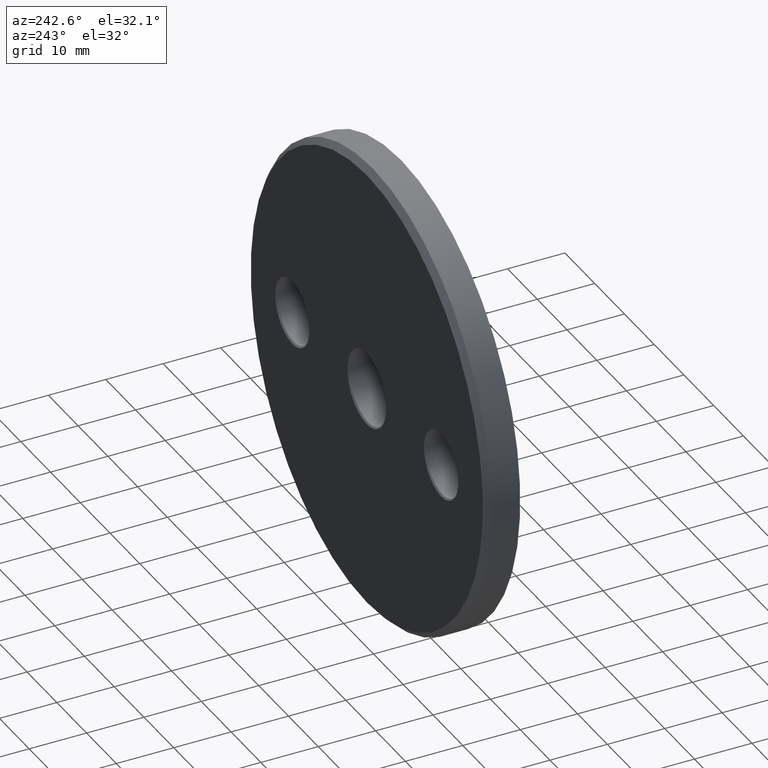
[diagram: clean part render]
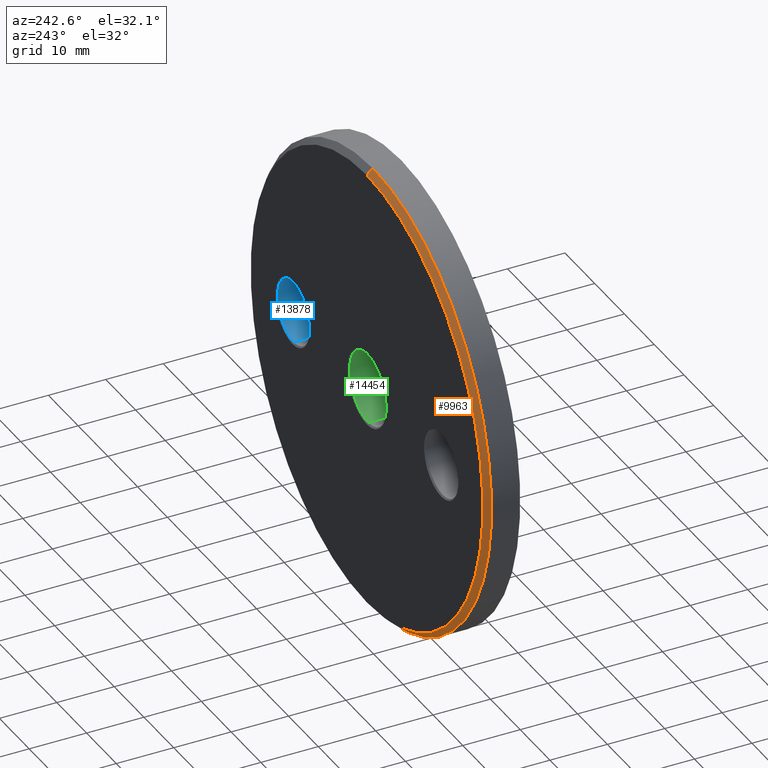
[diagram: same view with three faces highlighted in distinct colors, each labeled with its STEP entity id]
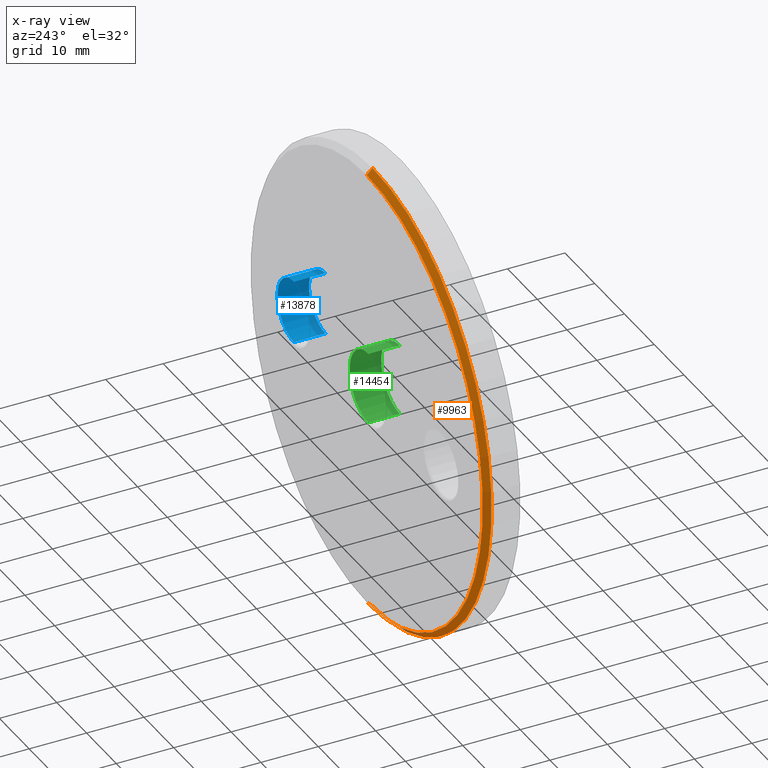
[diagram: x-ray of the same camera — body ghosted, the three highlighted faces saturated]
A machine part, auxiliary view with three faces highlighted in distinct colors.
The next image is the same camera in x-ray (body ghosted, the three faces saturated) — at least one of them is partly hidden behind the body in this view.
Their STEP definitions:

[orange] entity #9963 — the highlighted conical surface has half-angle 45 deg.
#149 = AXIS2_PLACEMENT_3D ( 'NONE', #9081, #5573, #6987 ) ;
#311 = EDGE_CURVE ( 'NONE', #7010, #11039, #6045, .T. ) ;
#735 = DIRECTION ( 'NONE',  ( 0.000000000000000000, -0.7071067811865525687, -0.7071067811865425767 ) ) ;
#1098 = LINE ( 'NONE', #15001, #12103 ) ;
#1276 = LINE ( 'NONE', #4237, #12832 ) ;
#1355 = CARTESIAN_POINT ( 'NONE',  ( 4.837354856632047030E-15, 6.000000000000000000, 39.00000000000003553 ) ) ;
#2762 = DIRECTION ( 'NONE',  ( 0.000000000000000000, 0.000000000000000000, 1.000000000000000000 ) ) ;
#3197 = CONICAL_SURFACE ( 'NONE', #149, 39.00000000000003553, 0.7853981633974412846 ) ;
#3791 = CARTESIAN_POINT ( 'NONE',  ( 0.000000000000000000, 6.000000000000000000, 0.000000000000000000 ) ) ;
#4074 = DIRECTION ( 'NONE',  ( 0.000000000000000000, 0.000000000000000000, 1.000000000000000000 ) ) ;
#4237 = CARTESIAN_POINT ( 'NONE',  ( 0.000000000000000000, 6.000000000000000000, -39.00000000000003553 ) ) ;
#4393 = ORIENTED_EDGE ( 'NONE', *, *, #6240, .T. ) ;
#4951 = EDGE_CURVE ( 'NONE', #5913, #14784, #8922, .T. ) ;
#5276 = AXIS2_PLACEMENT_3D ( 'NONE', #9966, #7603, #4074 ) ;
#5330 = DIRECTION ( 'NONE',  ( 8.659560562354873694E-17, -0.7071067811865525687, 0.7071067811865425767 ) ) ;
#5371 = EDGE_LOOP ( 'NONE', ( #5929, #14335, #4393, #8179 ) ) ;
#5573 = DIRECTION ( 'NONE',  ( 0.000000000000000000, -1.000000000000000000, 0.000000000000000000 ) ) ;
#5913 = VERTEX_POINT ( 'NONE', #13934 ) ;
#5929 = ORIENTED_EDGE ( 'NONE', *, *, #13531, .F. ) ;
#6045 = CIRCLE ( 'NONE', #7829, 39.00000000000003553 ) ;
#6240 = EDGE_CURVE ( 'NONE', #7010, #14784, #1276, .T. ) ;
#6987 = DIRECTION ( 'NONE',  ( 0.000000000000000000, 0.000000000000000000, -1.000000000000000000 ) ) ;
#7010 = VERTEX_POINT ( 'NONE', #10415 ) ;
#7423 = DIRECTION ( 'NONE',  ( 0.000000000000000000, 1.000000000000000000, 0.000000000000000000 ) ) ;
#7603 = DIRECTION ( 'NONE',  ( 0.000000000000000000, -1.000000000000000000, 0.000000000000000000 ) ) ;
#7829 = AXIS2_PLACEMENT_3D ( 'NONE', #3791, #7423, #2762 ) ;
#8179 = ORIENTED_EDGE ( 'NONE', *, *, #4951, .F. ) ;
#8922 = CIRCLE ( 'NONE', #5276, 40.00000000000000000 ) ;
#9081 = CARTESIAN_POINT ( 'NONE',  ( 0.000000000000000000, 6.000000000000000000, 0.000000000000000000 ) ) ;
#9713 = FACE_OUTER_BOUND ( 'NONE', #5371, .T. ) ;
#9963 = ADVANCED_FACE ( 'NONE', ( #9713 ), #3197, .T. ) ;
#9966 = CARTESIAN_POINT ( 'NONE',  ( 0.000000000000000000, 5.000000000000020428, 0.000000000000000000 ) ) ;
#10415 = CARTESIAN_POINT ( 'NONE',  ( 0.000000000000000000, 6.000000000000000000, -39.00000000000003553 ) ) ;
#11039 = VERTEX_POINT ( 'NONE', #1355 ) ;
#12103 = VECTOR ( 'NONE', #5330, 999.9999999999998863 ) ;
#12832 = VECTOR ( 'NONE', #735, 999.9999999999998863 ) ;
#13531 = EDGE_CURVE ( 'NONE', #11039, #5913, #1098, .T. ) ;
#13624 = CARTESIAN_POINT ( 'NONE',  ( 0.000000000000000000, 5.000000000000020428, -40.00000000000000000 ) ) ;
#13934 = CARTESIAN_POINT ( 'NONE',  ( 4.898587196589413026E-15, 5.000000000000020428, 40.00000000000000000 ) ) ;
#14335 = ORIENTED_EDGE ( 'NONE', *, *, #311, .F. ) ;
#14784 = VERTEX_POINT ( 'NONE', #13624 ) ;
#15001 = CARTESIAN_POINT ( 'NONE',  ( 4.776122516674681822E-15, 6.000000000000000000, 39.00000000000003553 ) ) ;

[blue] entity #13878 — the highlighted cylindrical surface (edge-blend (fillet) strip) has radius 5.5 mm, axis along (-0, -1, -0).
#974 = DIRECTION ( 'NONE',  ( -0.000000000000000000, -1.000000000000000000, -0.000000000000000000 ) ) ;
#1252 = CARTESIAN_POINT ( 'NONE',  ( 25.00000000000000000, 0.2500000000000036637, -5.500000000000002665 ) ) ;
#1289 = CARTESIAN_POINT ( 'NONE',  ( 25.00000000000000000, 5.749999999999985789, -6.123233995736766085E-15 ) ) ;
#1397 = CARTESIAN_POINT ( 'NONE',  ( 25.00000000000000000, 6.000000000000000000, -6.123233995736766085E-15 ) ) ;
#1422 = VERTEX_POINT ( 'NONE', #9083 ) ;
#1499 = DIRECTION ( 'NONE',  ( -0.000000000000000000, -1.000000000000000000, -0.000000000000000000 ) ) ;
#1804 = ORIENTED_EDGE ( 'NONE', *, *, #8013, .T. ) ;
#1911 = CYLINDRICAL_SURFACE ( 'NONE', #13186, 5.499999999999996447 ) ;
#3405 = LINE ( 'NONE', #8182, #4541 ) ;
#3652 = VERTEX_POINT ( 'NONE', #1252 ) ;
#3805 = CARTESIAN_POINT ( 'NONE',  ( 25.00000000000000000, 0.2500000000000036637, 5.499999999999990230 ) ) ;
#4541 = VECTOR ( 'NONE', #8035, 1000.000000000000000 ) ;
#4687 = FACE_OUTER_BOUND ( 'NONE', #10711, .T. ) ;
#6647 = EDGE_CURVE ( 'NONE', #8130, #14202, #7875, .T. ) ;
#7465 = CIRCLE ( 'NONE', #9095, 5.499999999999996447 ) ;
#7875 = LINE ( 'NONE', #8082, #11251 ) ;
#7879 = AXIS2_PLACEMENT_3D ( 'NONE', #1289, #14476, #12220 ) ;
#8013 = EDGE_CURVE ( 'NONE', #1422, #3652, #3405, .T. ) ;
#8035 = DIRECTION ( 'NONE',  ( -0.000000000000000000, -1.000000000000000000, -0.000000000000000000 ) ) ;
#8082 = CARTESIAN_POINT ( 'NONE',  ( 25.00000000000000000, 6.000000000000000000, 5.499999999999990230 ) ) ;
#8130 = VERTEX_POINT ( 'NONE', #9741 ) ;
#8182 = CARTESIAN_POINT ( 'NONE',  ( 25.00000000000000000, 6.000000000000000000, -5.500000000000002665 ) ) ;
#8443 = DIRECTION ( 'NONE',  ( 0.000000000000000000, 0.000000000000000000, -1.000000000000000000 ) ) ;
#8833 = CARTESIAN_POINT ( 'NONE',  ( 25.00000000000000000, 0.2500000000000036637, -6.123233995736766085E-15 ) ) ;
#9083 = CARTESIAN_POINT ( 'NONE',  ( 25.00000000000000000, 5.749999999999985789, -5.500000000000002665 ) ) ;
#9095 = AXIS2_PLACEMENT_3D ( 'NONE', #8833, #11196, #9826 ) ;
#9741 = CARTESIAN_POINT ( 'NONE',  ( 25.00000000000000000, 5.749999999999985789, 5.499999999999990230 ) ) ;
#9826 = DIRECTION ( 'NONE',  ( 0.000000000000000000, 0.000000000000000000, 1.000000000000000000 ) ) ;
#10506 = EDGE_CURVE ( 'NONE', #3652, #14202, #7465, .T. ) ;
#10711 = EDGE_LOOP ( 'NONE', ( #12169, #11531, #1804, #12657 ) ) ;
#10981 = CIRCLE ( 'NONE', #7879, 5.499999999999996447 ) ;
#11196 = DIRECTION ( 'NONE',  ( -0.000000000000000000, -1.000000000000000000, -0.000000000000000000 ) ) ;
#11251 = VECTOR ( 'NONE', #974, 1000.000000000000000 ) ;
#11531 = ORIENTED_EDGE ( 'NONE', *, *, #13933, .T. ) ;
#12169 = ORIENTED_EDGE ( 'NONE', *, *, #6647, .F. ) ;
#12220 = DIRECTION ( 'NONE',  ( 0.000000000000000000, 0.000000000000000000, 1.000000000000000000 ) ) ;
#12657 = ORIENTED_EDGE ( 'NONE', *, *, #10506, .T. ) ;
#13186 = AXIS2_PLACEMENT_3D ( 'NONE', #1397, #1499, #8443 ) ;
#13878 = ADVANCED_FACE ( 'NONE', ( #4687 ), #1911, .F. ) ;
#13933 = EDGE_CURVE ( 'NONE', #8130, #1422, #10981, .T. ) ;
#14202 = VERTEX_POINT ( 'NONE', #3805 ) ;
#14476 = DIRECTION ( 'NONE',  ( 0.000000000000000000, 1.000000000000000000, 0.000000000000000000 ) ) ;

[green] entity #14454 — the highlighted cylindrical surface (partial cylindrical patch) has radius 6.25 mm, axis along (-0, 1, -0).
#883 = DIRECTION ( 'NONE',  ( 0.000000000000000000, 1.000000000000000000, 0.000000000000000000 ) ) ;
#1097 = DIRECTION ( 'NONE',  ( 0.000000000000000000, 0.000000000000000000, 1.000000000000000000 ) ) ;
#1381 = DIRECTION ( 'NONE',  ( -0.000000000000000000, 1.000000000000000000, -0.000000000000000000 ) ) ;
#1687 = CARTESIAN_POINT ( 'NONE',  ( 0.000000000000000000, 5.749999999999973355, 6.250000000000000000 ) ) ;
#1757 = CARTESIAN_POINT ( 'NONE',  ( 0.000000000000000000, 0.2499999999999976130, 0.000000000000000000 ) ) ;
#1905 = VERTEX_POINT ( 'NONE', #3635 ) ;
#2018 = CARTESIAN_POINT ( 'NONE',  ( 0.000000000000000000, 0.000000000000000000, 6.250000000000000000 ) ) ;
#2140 = VECTOR ( 'NONE', #9851, 1000.000000000000000 ) ;
#2145 = EDGE_LOOP ( 'NONE', ( #9877, #15295, #12675, #10177 ) ) ;
#2940 = CARTESIAN_POINT ( 'NONE',  ( 7.654042494670957606E-16, 0.2499999999999976130, -6.250000000000000000 ) ) ;
#3635 = CARTESIAN_POINT ( 'NONE',  ( 0.000000000000000000, 0.2499999999999976130, 6.250000000000000000 ) ) ;
#4491 = CYLINDRICAL_SURFACE ( 'NONE', #14817, 6.250000000000000000 ) ;
#4714 = LINE ( 'NONE', #10951, #2140 ) ;
#5190 = DIRECTION ( 'NONE',  ( -0.000000000000000000, -1.000000000000000000, -0.000000000000000000 ) ) ;
#6021 = CIRCLE ( 'NONE', #9772, 6.250000000000000000 ) ;
#6033 = VECTOR ( 'NONE', #1381, 1000.000000000000000 ) ;
#6398 = DIRECTION ( 'NONE',  ( 0.000000000000000000, 0.000000000000000000, 1.000000000000000000 ) ) ;
#7701 = VERTEX_POINT ( 'NONE', #2940 ) ;
#7830 = DIRECTION ( 'NONE',  ( 0.000000000000000000, 0.000000000000000000, 1.000000000000000000 ) ) ;
#7985 = CARTESIAN_POINT ( 'NONE',  ( 0.000000000000000000, 5.749999999999973355, 0.000000000000000000 ) ) ;
#8421 = LINE ( 'NONE', #2018, #6033 ) ;
#8505 = EDGE_CURVE ( 'NONE', #7701, #9052, #4714, .T. ) ;
#8822 = EDGE_CURVE ( 'NONE', #1905, #13150, #8421, .T. ) ;
#9052 = VERTEX_POINT ( 'NONE', #12821 ) ;
#9691 = FACE_OUTER_BOUND ( 'NONE', #2145, .T. ) ;
#9772 = AXIS2_PLACEMENT_3D ( 'NONE', #7985, #883, #7830 ) ;
#9851 = DIRECTION ( 'NONE',  ( -0.000000000000000000, 1.000000000000000000, -0.000000000000000000 ) ) ;
#9877 = ORIENTED_EDGE ( 'NONE', *, *, #8505, .F. ) ;
#9893 = EDGE_CURVE ( 'NONE', #13150, #9052, #6021, .T. ) ;
#10177 = ORIENTED_EDGE ( 'NONE', *, *, #9893, .T. ) ;
#10951 = CARTESIAN_POINT ( 'NONE',  ( 7.654042494670957606E-16, 0.000000000000000000, -6.250000000000000000 ) ) ;
#11885 = EDGE_CURVE ( 'NONE', #7701, #1905, #12881, .T. ) ;
#12675 = ORIENTED_EDGE ( 'NONE', *, *, #8822, .T. ) ;
#12821 = CARTESIAN_POINT ( 'NONE',  ( 7.654042494670957606E-16, 5.749999999999973355, -6.250000000000000000 ) ) ;
#12877 = DIRECTION ( 'NONE',  ( -0.000000000000000000, 1.000000000000000000, -0.000000000000000000 ) ) ;
#12881 = CIRCLE ( 'NONE', #15333, 6.250000000000000000 ) ;
#13150 = VERTEX_POINT ( 'NONE', #1687 ) ;
#14125 = CARTESIAN_POINT ( 'NONE',  ( 0.000000000000000000, 0.000000000000000000, 0.000000000000000000 ) ) ;
#14454 = ADVANCED_FACE ( 'NONE', ( #9691 ), #4491, .F. ) ;
#14817 = AXIS2_PLACEMENT_3D ( 'NONE', #14125, #12877, #1097 ) ;
#15295 = ORIENTED_EDGE ( 'NONE', *, *, #11885, .T. ) ;
#15333 = AXIS2_PLACEMENT_3D ( 'NONE', #1757, #5190, #6398 ) ;